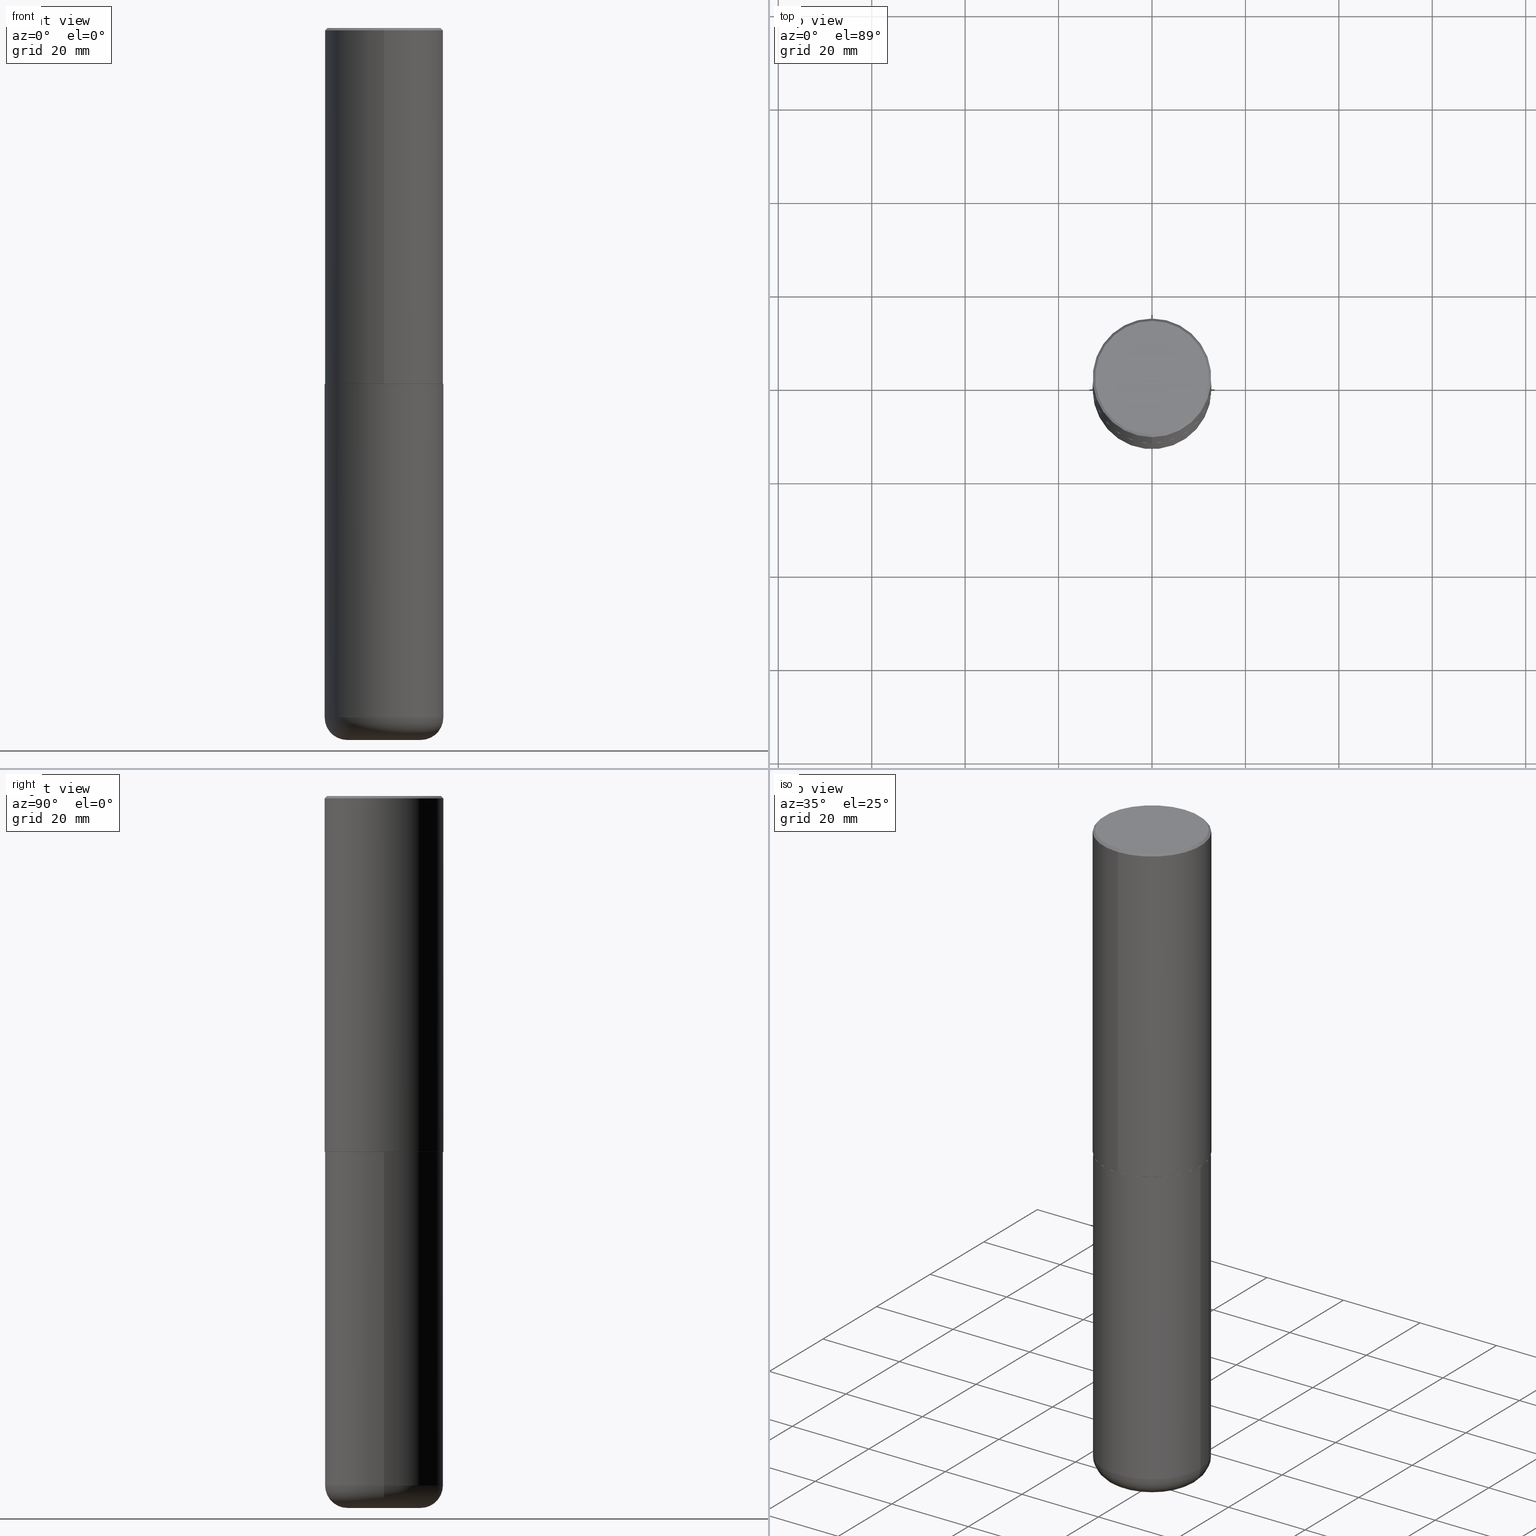
[diagram: canonical four-view strip — front | top / right | iso, engineering-drawing reading convention]
A machine part, canonical four-view strip (front | top / right | iso — engineering-drawing reading convention). The complete STEP part file that produces these views, byte-faithful:
ISO-10303-21;
HEADER;
FILE_DESCRIPTION (( 'STEP AP203' ),
    '1' );
FILE_NAME ('37741.STEP',
    '2024-03-02T10:04:36',
    ( '' ),
    ( '' ),
    'SwSTEP 2.0',
    'SolidWorks 2023',
    '' );
FILE_SCHEMA (( 'CONFIG_CONTROL_DESIGN' ));
ENDSEC;

DATA;
#1 = ORIENTED_EDGE ( 'NONE', *, *, #166, .T. ) ;
#2 = EDGE_LOOP ( 'NONE', ( #46, #260, #193, #71 ) ) ;
#3 = COORDINATED_UNIVERSAL_TIME_OFFSET ( 5, 0, .BEHIND. ) ;
#4 = CARTESIAN_POINT ( 'NONE',  ( 3.491481338843133355E-15, 0.4999999999999999445, -0.02000000000000185310 ) ) ;
#5 = DIRECTION ( 'NONE',  ( -2.444898033699712212E-29, 3.492298717528625990E-15, 1.000000000000000000 ) ) ;
#6 = DATE_AND_TIME ( #327, #199 ) ;
#7 = PRODUCT_RELATED_PRODUCT_CATEGORY ( 'detail', '', ( #351 ) ) ;
#8 = COORDINATED_UNIVERSAL_TIME_OFFSET ( 5, 0, .BEHIND. ) ;
#9 = LOCAL_TIME ( 5, 4, 36.00000000000000000, #360 ) ;
#10 = ORIENTED_EDGE ( 'NONE', *, *, #295, .F. ) ;
#11 = TOROIDAL_SURFACE ( 'NONE', #299, 0.3099999999999999978, 0.1899999999999999467 ) ;
#12 = CARTESIAN_POINT ( 'NONE',  ( 4.889796067399450837E-31, -6.984597435057287381E-17, -0.02000000000000010797 ) ) ;
#13 = AXIS2_PLACEMENT_3D ( 'NONE', #194, #334, #47 ) ;
#14 = AXIS2_PLACEMENT_3D ( 'NONE', #88, #143, #381 ) ;
#15 = ORIENTED_EDGE ( 'NONE', *, *, #78, .T. ) ;
#16 = CARTESIAN_POINT ( 'NONE',  ( 0.5000000000000000000, -1.396592535537257129E-14, -3.000000000000000444 ) ) ;
#17 = CARTESIAN_POINT ( 'NONE',  ( 7.334694101099137475E-29, -1.047689615258587837E-14, -3.000000000000000444 ) ) ;
#18 = CIRCLE ( 'NONE', #140, 0.5000000000000000000 ) ;
#19 = VERTEX_POINT ( 'NONE', #4 ) ;
#20 = AXIS2_PLACEMENT_3D ( 'NONE', #35, #22, #210 ) ;
#21 = CARTESIAN_POINT ( 'NONE',  ( -3.430248998885764992E-15, -0.5000000000000001110, -0.01999999999999835937 ) ) ;
#22 = DIRECTION ( 'NONE',  ( -2.445468806185136597E-29, 3.491481338843145583E-15, 1.000000000000000000 ) ) ;
#23 = ADVANCED_FACE ( 'NONE', ( #73 ), #338, .T. ) ;
#24 = PLANE ( 'NONE',  #141 ) ;
#25 = DIRECTION ( 'NONE',  ( -2.444898033699712212E-29, 3.492298717528625990E-15, 1.000000000000000000 ) ) ;
#26 = PRODUCT_DEFINITION ( 'UNKNOWN', '', #104, #207 ) ;
#27 = CARTESIAN_POINT ( 'NONE',  ( 0.000000000000000000, 0.000000000000000000, 0.000000000000000000 ) ) ;
#28 = CARTESIAN_POINT ( 'NONE',  ( -0.5000000000000000000, -1.182726161880355609E-14, -3.000000000000000444 ) ) ;
#29 = LINE ( 'NONE', #355, #42 ) ;
#30 = VERTEX_POINT ( 'NONE', #280 ) ;
#31 = ORGANIZATION ( 'UNSPECIFIED', 'UNSPECIFIED', '' ) ;
#32 = APPROVAL_ROLE ( '' ) ;
#33 = ORIENTED_EDGE ( 'NONE', *, *, #330, .F. ) ;
#34 = ORIENTED_EDGE ( 'NONE', *, *, #196, .T. ) ;
#35 = CARTESIAN_POINT ( 'NONE',  ( 1.467281283711081958E-28, -2.094888803305887271E-14, -6.000000000000000888 ) ) ;
#36 = PERSON_AND_ORGANIZATION ( #200, #31 ) ;
#37 = FACE_OUTER_BOUND ( 'NONE', #233, .T. ) ;
#38 = ADVANCED_FACE ( 'NONE', ( #40 ), #224, .T. ) ;
#39 = ORIENTED_EDGE ( 'NONE', *, *, #103, .T. ) ;
#40 = FACE_OUTER_BOUND ( 'NONE', #154, .T. ) ;
#41 = EDGE_CURVE ( 'NONE', #332, #51, #101, .T. ) ;
#42 = VECTOR ( 'NONE', #129, 39.37007874015748143 ) ;
#43 = DATE_TIME_ROLE ( 'classification_date' ) ;
#44 = APPROVAL_PERSON_ORGANIZATION ( #178, #80, #32 ) ;
#45 = DIRECTION ( 'NONE',  ( -2.444898033699712212E-29, 3.492298717528625990E-15, 1.000000000000000000 ) ) ;
#46 = ORIENTED_EDGE ( 'NONE', *, *, #196, .F. ) ;
#47 = DIRECTION ( 'NONE',  ( -6.982962677686265922E-15, -1.000000000000000000, 3.284787166730577015E-15 ) ) ;
#48 = CARTESIAN_POINT ( 'NONE',  ( 0.000000000000000000, 0.000000000000000000, 0.000000000000000000 ) ) ;
#49 = VECTOR ( 'NONE', #121, 39.37007874015748143 ) ;
#50 = AXIS2_PLACEMENT_3D ( 'NONE', #312, #58, #379 ) ;
#51 = VERTEX_POINT ( 'NONE', #300 ) ;
#52 = CARTESIAN_POINT ( 'NONE',  ( 0.000000000000000000, 0.000000000000000000, 0.000000000000000000 ) ) ;
#53 = DIRECTION ( 'NONE',  ( 1.000000000000000000, -6.982962677686266711E-15, 4.876176775795935793E-29 ) ) ;
#54 = AXIS2_PLACEMENT_3D ( 'NONE', #170, #269, #294 ) ;
#55 = LINE ( 'NONE', #306, #49 ) ;
#56 = ADVANCED_FACE ( 'NONE', ( #147 ), #191, .T. ) ;
#57 = CARTESIAN_POINT ( 'NONE',  ( 1.467281283711081958E-28, -2.094888803305887271E-14, -6.000000000000000888 ) ) ;
#58 = DIRECTION ( 'NONE',  ( -2.444898033699712212E-29, 3.492298717528625990E-15, 1.000000000000000000 ) ) ;
#59 = CARTESIAN_POINT ( 'NONE',  ( -3.491481338843133750E-15, -0.5000000000000001110, 1.746149358764313390E-15 ) ) ;
#60 = TOROIDAL_SURFACE ( 'NONE', #406, 0.3099999999999999978, 0.1899999999999999467 ) ;
#61 = CARTESIAN_POINT ( 'NONE',  ( -3.361644018908049661E-15, -0.4799999999999999267, 1.779140025945180744E-15 ) ) ;
#62 = ORIENTED_EDGE ( 'NONE', *, *, #132, .T. ) ;
#63 = EDGE_CURVE ( 'NONE', #111, #109, #55, .T. ) ;
#64 = DATE_AND_TIME ( #349, #270 ) ;
#65 = CARTESIAN_POINT ( 'NONE',  ( -3.430248998885764992E-15, -0.5000000000000001110, -0.01999999999999835937 ) ) ;
#66 = CARTESIAN_POINT ( 'NONE',  ( 4.889796067399450837E-31, -6.984597435057287381E-17, -0.02000000000000010797 ) ) ;
#67 = PERSON_AND_ORGANIZATION ( #200, #31 ) ;
#68 = CARTESIAN_POINT ( 'NONE',  ( 1.420817376393564695E-28, -2.028550657867867926E-14, -5.810000000000000497 ) ) ;
#69 = CIRCLE ( 'NONE', #266, 0.5000000000000000000 ) ;
#70 = PERSON_AND_ORGANIZATION_ROLE ( 'creator' ) ;
#71 = ORIENTED_EDGE ( 'NONE', *, *, #302, .F. ) ;
#72 = APPROVAL ( #182, 'UNSPECIFIED' ) ;
#73 = FACE_OUTER_BOUND ( 'NONE', #367, .T. ) ;
#74 = CALENDAR_DATE ( 2024, 2, 3 ) ;
#75 = ORIENTED_EDGE ( 'NONE', *, *, #166, .F. ) ;
#76 = CIRCLE ( 'NONE', #310, 0.5000000000000000000 ) ;
#77 = ORIENTED_EDGE ( 'NONE', *, *, #223, .T. ) ;
#78 = EDGE_CURVE ( 'NONE', #161, #197, #29, .T. ) ;
#79 = EDGE_LOOP ( 'NONE', ( #281, #267, #62, #284 ) ) ;
#80 = APPROVAL ( #246, 'UNSPECIFIED' ) ;
#81 = CC_DESIGN_APPROVAL ( #382, ( #104 ) ) ;
#82 = ORIENTED_EDGE ( 'NONE', *, *, #162, .T. ) ;
#83 = DIRECTION ( 'NONE',  ( -2.445468806185136877E-29, 3.491481338843145188E-15, 1.000000000000000000 ) ) ;
#84 = DIRECTION ( 'NONE',  ( 1.000000000000000000, -6.982962677686266711E-15, 0.000000000000000000 ) ) ;
#85 = AXIS2_PLACEMENT_3D ( 'NONE', #343, #145, #176 ) ;
#86 = AXIS2_PLACEMENT_3D ( 'NONE', #319, #25, #350 ) ;
#87 = LINE ( 'NONE', #21, #113 ) ;
#88 = CARTESIAN_POINT ( 'NONE',  ( 7.332249203065438921E-29, -1.047340385386834930E-14, -2.999000000000000554 ) ) ;
#89 = CARTESIAN_POINT ( 'NONE',  ( 1.420817376393564695E-28, -2.028550657867867926E-14, -5.810000000000000497 ) ) ;
#90 = EDGE_LOOP ( 'NONE', ( #390, #75, #226, #186 ) ) ;
#91 = LINE ( 'NONE', #345, #229 ) ;
#92 = AXIS2_PLACEMENT_3D ( 'NONE', #114, #410, #376 ) ;
#93 = CC_DESIGN_APPROVAL ( #80, ( #174 ) ) ;
#94 = DATE_AND_TIME ( #261, #412 ) ;
#95 = DIRECTION ( 'NONE',  ( 6.982962677686265922E-15, 1.000000000000000000, -3.491643216902136408E-15 ) ) ;
#96 = DIRECTION ( 'NONE',  ( 0.000000000000000000, 0.000000000000000000, 1.000000000000000000 ) ) ;
#97 = MECHANICAL_CONTEXT ( 'NONE', #118, 'mechanical' ) ;
#98 = UNCERTAINTY_MEASURE_WITH_UNIT (LENGTH_MEASURE( 1.000000000000000082E-05 ), #303, 'distance_accuracy_value', 'NONE');
#99 = ORIENTED_EDGE ( 'NONE', *, *, #298, .F. ) ;
#100 = FACE_OUTER_BOUND ( 'NONE', #135, .T. ) ;
#101 = CIRCLE ( 'NONE', #234, 0.1899999999999999467 ) ;
#102 = ORIENTED_EDGE ( 'NONE', *, *, #103, .F. ) ;
#103 = EDGE_CURVE ( 'NONE', #320, #30, #183, .T. ) ;
#104 = PRODUCT_DEFINITION_FORMATION_WITH_SPECIFIED_SOURCE ( 'ANY', '', #351, .NOT_KNOWN. ) ;
#105 = DIRECTION ( 'NONE',  ( 6.982962677686265922E-15, 1.000000000000000000, -3.491643216902136408E-15 ) ) ;
#106 = ADVANCED_FACE ( 'NONE', ( #369 ), #146, .T. ) ;
#107 = CLOSED_SHELL ( 'NONE', ( #165, #56, #23, #138, #363, #106, #326, #110 ) ) ;
#108 = APPROVAL_PERSON_ORGANIZATION ( #315, #72, #220 ) ;
#109 = VERTEX_POINT ( 'NONE', #325 ) ;
#110 = ADVANCED_FACE ( 'NONE', ( #365 ), #407, .F. ) ;
#111 = VERTEX_POINT ( 'NONE', #116 ) ;
#112 = VERTEX_POINT ( 'NONE', #272 ) ;
#113 = VECTOR ( 'NONE', #283, 39.37007874015748143 ) ;
#114 = CARTESIAN_POINT ( 'NONE',  ( 3.351822085289407153E-15, 0.4799999999999999267, -1.624885063648019971E-15 ) ) ;
#115 = CARTESIAN_POINT ( 'NONE',  ( 0.5000000000000000000, -3.491481338843133355E-15, 2.438088387897967896E-29 ) ) ;
#116 = CARTESIAN_POINT ( 'NONE',  ( 3.549160965121773789E-15, 0.4989999999999895630, -3.000000000000001776 ) ) ;
#117 = DIRECTION ( 'NONE',  ( -6.982962677686265922E-15, -1.000000000000000000, 3.284787166730577015E-15 ) ) ;
#118 = APPLICATION_CONTEXT ( 'configuration controlled 3d designs of mechanical parts and assemblies' ) ;
#119 = DIRECTION ( 'NONE',  ( 1.000000000000000000, -6.982962677686263555E-15, 0.000000000000000000 ) ) ;
#120 = CIRCLE ( 'NONE', #85, 0.1899999999999999467 ) ;
#121 = DIRECTION ( 'NONE',  ( 5.024295867789263036E-15, 0.7071067811867189912, 0.7071067811863760433 ) ) ;
#122 =( NAMED_UNIT ( * ) SI_UNIT ( $, .STERADIAN. ) SOLID_ANGLE_UNIT ( ) );
#123 = DATE_AND_TIME ( #285, #160 ) ;
#124 = AXIS2_PLACEMENT_3D ( 'NONE', #308, #175, #95 ) ;
#125 = ORIENTED_EDGE ( 'NONE', *, *, #372, .F. ) ;
#126 = PERSON_AND_ORGANIZATION_ROLE ( 'classification_officer' ) ;
#127 = DIRECTION ( 'NONE',  ( -6.982962677686265922E-15, -1.000000000000000000, 3.284787166730577015E-15 ) ) ;
#128 = SHAPE_DEFINITION_REPRESENTATION ( #263, #386 ) ;
#129 = DIRECTION ( 'NONE',  ( -4.937700262165728178E-15, -0.7071067811867141062, 0.7071067811863809283 ) ) ;
#130 = CIRCLE ( 'NONE', #50, 0.5000000000000002220 ) ;
#131 = DIRECTION ( 'NONE',  ( 1.000000000000000000, 0.000000000000000000, 0.000000000000000000 ) ) ;
#132 = EDGE_CURVE ( 'NONE', #197, #222, #321, .T. ) ;
#133 = DIRECTION ( 'NONE',  ( -2.444898033699712212E-29, 3.492298717528625990E-15, 1.000000000000000000 ) ) ;
#134 = ORIENTED_EDGE ( 'NONE', *, *, #330, .T. ) ;
#135 = EDGE_LOOP ( 'NONE', ( #195, #134, #316, #257 ) ) ;
#136 = APPLICATION_CONTEXT ( 'configuration controlled 3d designs of mechanical parts and assemblies' ) ;
#137 = CARTESIAN_POINT ( 'NONE',  ( 3.491481338843133355E-15, 0.4999999999999999445, -0.02000000000000185310 ) ) ;
#138 = ADVANCED_FACE ( 'NONE', ( #417 ), #264, .T. ) ;
#139 = EDGE_CURVE ( 'NONE', #51, #112, #309, .T. ) ;
#140 = AXIS2_PLACEMENT_3D ( 'NONE', #243, #215, #292 ) ;
#141 = AXIS2_PLACEMENT_3D ( 'NONE', #242, #173, #340 ) ;
#142 = CC_DESIGN_PERSON_AND_ORGANIZATION_ASSIGNMENT ( #36, #258, ( #104 ) ) ;
#143 = DIRECTION ( 'NONE',  ( -2.444898033699712212E-29, 3.492298717528625990E-15, 1.000000000000000000 ) ) ;
#144 = DIRECTION ( 'NONE',  ( -2.445468806185136597E-29, 3.491481338843145583E-15, 1.000000000000000000 ) ) ;
#145 = DIRECTION ( 'NONE',  ( -6.982962677686266711E-15, -1.000000000000000000, 3.491481338843145583E-15 ) ) ;
#146 = CONICAL_SURFACE ( 'NONE', #13, 0.4989999999999999991, 0.7853981633976873100 ) ;
#147 = FACE_OUTER_BOUND ( 'NONE', #331, .T. ) ;
#148 = APPROVAL_PERSON_ORGANIZATION ( #318, #382, #389 ) ;
#149 = DIRECTION ( 'NONE',  ( -2.445468806185136597E-29, 3.491481338843145583E-15, 1.000000000000000000 ) ) ;
#150 = LINE ( 'NONE', #115, #247 ) ;
#151 = DIRECTION ( 'NONE',  ( 1.000000000000000000, -6.982962677686270655E-15, 0.000000000000000000 ) ) ;
#152 = CARTESIAN_POINT ( 'NONE',  ( 3.552713678800501718E-15, 0.5000000000000001110, -1.746149358764313390E-15 ) ) ;
#153 = CARTESIAN_POINT ( 'NONE',  ( -3.491481338843061569E-15, -0.5000000000000107692, -2.998999999999998778 ) ) ;
#154 = EDGE_LOOP ( 'NONE', ( #241, #33 ) ) ;
#155 = EDGE_CURVE ( 'NONE', #222, #19, #18, .T. ) ;
#156 = PERSON_AND_ORGANIZATION_ROLE ( 'creator' ) ;
#157 = CC_DESIGN_APPROVAL ( #72, ( #26 ) ) ;
#158 = COORDINATED_UNIVERSAL_TIME_OFFSET ( 5, 0, .BEHIND. ) ;
#159 = EDGE_CURVE ( 'NONE', #112, #51, #76, .T. ) ;
#160 = LOCAL_TIME ( 5, 4, 36.00000000000000000, #187 ) ;
#161 = VERTEX_POINT ( 'NONE', #179 ) ;
#162 = EDGE_CURVE ( 'NONE', #180, #332, #329, .T. ) ;
#163 = PLANE ( 'NONE',  #54 ) ;
#164 = CONICAL_SURFACE ( 'NONE', #259, 0.4989999999999999991, 0.7853981633976873100 ) ;
#165 = ADVANCED_FACE ( 'NONE', ( #313 ), #164, .T. ) ;
#166 = EDGE_CURVE ( 'NONE', #30, #320, #339, .T. ) ;
#167 = ORIENTED_EDGE ( 'NONE', *, *, #317, .F. ) ;
#168 = ORIENTED_EDGE ( 'NONE', *, *, #344, .F. ) ;
#169 = AXIS2_PLACEMENT_3D ( 'NONE', #52, #278, #402 ) ;
#170 = CARTESIAN_POINT ( 'NONE',  ( 7.336406418555409790E-29, -1.047444401652943635E-14, -3.000000000000000444 ) ) ;
#171 = CARTESIAN_POINT ( 'NONE',  ( 0.000000000000000000, 0.000000000000000000, 0.000000000000000000 ) ) ;
#172 = CARTESIAN_POINT ( 'NONE',  ( 7.336406418555409790E-29, -1.047444401652943635E-14, -3.000000000000000444 ) ) ;
#173 = DIRECTION ( 'NONE',  ( -2.444898033699711371E-29, 3.492298717528626385E-15, 1.000000000000000000 ) ) ;
#174 = SECURITY_CLASSIFICATION ( '', '', #323 ) ;
#175 = DIRECTION ( 'NONE',  ( 2.444898033699712212E-29, -3.492298717528625990E-15, -1.000000000000000000 ) ) ;
#176 = DIRECTION ( 'NONE',  ( 1.000000000000000000, -6.982962677686263555E-15, 0.000000000000000000 ) ) ;
#177 = CARTESIAN_POINT ( 'NONE',  ( -2.514251026725007597E-45, 3.591362713352002573E-31, 1.028366415314403880E-16 ) ) ;
#178 = PERSON_AND_ORGANIZATION ( #200, #31 ) ;
#179 = CARTESIAN_POINT ( 'NONE',  ( -3.484498376165373188E-15, -0.4990000000000104352, -2.999999999999998668 ) ) ;
#180 = VERTEX_POINT ( 'NONE', #391 ) ;
#181 = DIRECTION ( 'NONE',  ( -6.982962677686265922E-15, -1.000000000000000000, 3.491643216902136408E-15 ) ) ;
#182 = APPROVAL_STATUS ( 'not_yet_approved' ) ;
#183 = CIRCLE ( 'NONE', #301, 0.4799999999999999267 ) ;
#184 = VECTOR ( 'NONE', #383, 39.37007874015748143 ) ;
#185 = APPROVAL_STATUS ( 'not_yet_approved' ) ;
#186 = ORIENTED_EDGE ( 'NONE', *, *, #293, .T. ) ;
#187 = COORDINATED_UNIVERSAL_TIME_OFFSET ( 5, 0, .BEHIND. ) ;
#188 = EDGE_LOOP ( 'NONE', ( #1, #39 ) ) ;
#189 = PERSON_AND_ORGANIZATION ( #200, #31 ) ;
#190 = ORIENTED_EDGE ( 'NONE', *, *, #41, .T. ) ;
#191 = CYLINDRICAL_SURFACE ( 'NONE', #286, 0.5000000000000001110 ) ;
#192 = CIRCLE ( 'NONE', #277, 0.3099999999999999978 ) ;
#193 = ORIENTED_EDGE ( 'NONE', *, *, #357, .T. ) ;
#194 = CARTESIAN_POINT ( 'NONE',  ( 7.334694101099137475E-29, -1.047689615258587837E-14, -3.000000000000000444 ) ) ;
#195 = ORIENTED_EDGE ( 'NONE', *, *, #41, .F. ) ;
#196 = EDGE_CURVE ( 'NONE', #51, #256, #91, .T. ) ;
#197 = VERTEX_POINT ( 'NONE', #153 ) ;
#198 = AXIS2_PLACEMENT_3D ( 'NONE', #68, #149, #413 ) ;
#199 = LOCAL_TIME ( 5, 4, 36.00000000000000000, #3 ) ;
#200 = PERSON ( 'UNSPECIFIED', 'UNSPECIFIED', 'UNSPECIFIED', ('UNSPECIFIED'), ('UNSPECIFIED'), ('UNSPECIFIED') ) ;
#201 = CC_DESIGN_PERSON_AND_ORGANIZATION_ASSIGNMENT ( #189, #126, ( #174 ) ) ;
#202 = ORIENTED_EDGE ( 'NONE', *, *, #371, .T. ) ;
#203 = FACE_OUTER_BOUND ( 'NONE', #291, .T. ) ;
#204 = VECTOR ( 'NONE', #248, 39.37007874015748143 ) ;
#205 = LINE ( 'NONE', #152, #184 ) ;
#206 = AXIS2_PLACEMENT_3D ( 'NONE', #171, #240, #341 ) ;
#207 = DESIGN_CONTEXT ( 'detailed design', #136, 'design' ) ;
#208 = CC_DESIGN_PERSON_AND_ORGANIZATION_ASSIGNMENT ( #67, #296, ( #351 ) ) ;
#209 = DIRECTION ( 'NONE',  ( -2.445468806185136597E-29, 3.491481338843145583E-15, 1.000000000000000000 ) ) ;
#210 = DIRECTION ( 'NONE',  ( 1.000000000000000000, -6.982962677686263555E-15, 0.000000000000000000 ) ) ;
#211 = DIRECTION ( 'NONE',  ( -1.000000000000000000, 6.982962677686265922E-15, -4.876176775795935793E-29 ) ) ;
#212 = DIRECTION ( 'NONE',  ( -2.445468806185136597E-29, 3.491481338843145583E-15, 1.000000000000000000 ) ) ;
#213 = DIRECTION ( 'NONE',  ( 1.000000000000000000, -6.982962677686264344E-15, 4.883557194083112340E-29 ) ) ;
#214 = AXIS2_PLACEMENT_3D ( 'NONE', #177, #393, #251 ) ;
#215 = DIRECTION ( 'NONE',  ( -2.444898033699712212E-29, 3.492298717528625990E-15, 1.000000000000000000 ) ) ;
#216 = APPROVAL_DATE_TIME ( #123, #72 ) ;
#217 = ADVANCED_FACE ( 'NONE', ( #100 ), #11, .T. ) ;
#218 = APPLICATION_PROTOCOL_DEFINITION ( 'international standard', 'config_control_design', 1994, #118 ) ;
#219 = DIRECTION ( 'NONE',  ( -2.445468806185136877E-29, 3.491481338843145188E-15, 1.000000000000000000 ) ) ;
#220 = APPROVAL_ROLE ( '' ) ;
#221 =( GEOMETRIC_REPRESENTATION_CONTEXT ( 3 ) GLOBAL_UNCERTAINTY_ASSIGNED_CONTEXT ( ( #98 ) ) GLOBAL_UNIT_ASSIGNED_CONTEXT ( ( #303, #304, #122 ) ) REPRESENTATION_CONTEXT ( 'NONE', 'WORKASPACE' ) );
#222 = VERTEX_POINT ( 'NONE', #65 ) ;
#223 = EDGE_CURVE ( 'NONE', #111, #161, #395, .T. ) ;
#224 = PLANE ( 'NONE',  #346 ) ;
#225 = PERSON_AND_ORGANIZATION ( #200, #31 ) ;
#226 = ORIENTED_EDGE ( 'NONE', *, *, #228, .T. ) ;
#227 = ORIENTED_EDGE ( 'NONE', *, *, #155, .F. ) ;
#228 = EDGE_CURVE ( 'NONE', #30, #19, #236, .T. ) ;
#229 = VECTOR ( 'NONE', #219, 39.37007874015748143 ) ;
#230 = CARTESIAN_POINT ( 'NONE',  ( -2.514251026725007597E-45, 3.591362713352002573E-31, 1.028366415314403880E-16 ) ) ;
#231 = DIRECTION ( 'NONE',  ( -6.982962677686265922E-15, -1.000000000000000000, 3.492298717528625990E-15 ) ) ;
#232 = DIRECTION ( 'NONE',  ( 2.444898033699712212E-29, -3.492298717528625990E-15, -1.000000000000000000 ) ) ;
#233 = EDGE_LOOP ( 'NONE', ( #82, #190, #314, #168 ) ) ;
#234 = AXIS2_PLACEMENT_3D ( 'NONE', #354, #401, #405 ) ;
#235 = VECTOR ( 'NONE', #362, 39.37007874015748143 ) ;
#236 = LINE ( 'NONE', #137, #235 ) ;
#237 = FACE_OUTER_BOUND ( 'NONE', #289, .T. ) ;
#238 = FACE_OUTER_BOUND ( 'NONE', #79, .T. ) ;
#239 = ADVANCED_FACE ( 'NONE', ( #328 ), #163, .F. ) ;
#240 = DIRECTION ( 'NONE',  ( -2.444898033699712212E-29, 3.492298717528625990E-15, 1.000000000000000000 ) ) ;
#241 = ORIENTED_EDGE ( 'NONE', *, *, #162, .F. ) ;
#242 = CARTESIAN_POINT ( 'NONE',  ( 7.334694101099137475E-29, -1.047689615258587837E-14, -3.000000000000000444 ) ) ;
#243 = CARTESIAN_POINT ( 'NONE',  ( 4.889796067399450837E-31, -6.984597435057287381E-17, -0.02000000000000010797 ) ) ;
#244 = DIRECTION ( 'NONE',  ( -2.444898033699712212E-29, 3.492298717528625990E-15, 1.000000000000000000 ) ) ;
#245 = MANIFOLD_SOLID_BREP ( 'Body-Move/Copy2[2]', #107 ) ;
#246 = APPROVAL_STATUS ( 'not_yet_approved' ) ;
#247 = VECTOR ( 'NONE', #83, 39.37007874015748143 ) ;
#248 = DIRECTION ( 'NONE',  ( -2.444898033699711931E-29, 3.492298717528626385E-15, 1.000000000000000000 ) ) ;
#249 = DIRECTION ( 'NONE',  ( -2.445468806185136597E-29, 3.491481338843145583E-15, 1.000000000000000000 ) ) ;
#250 = DATE_AND_TIME ( #74, #9 ) ;
#251 = DIRECTION ( 'NONE',  ( -6.982962677686265922E-15, -1.000000000000000000, 3.492298717528625990E-15 ) ) ;
#252 = APPROVAL_DATE_TIME ( #6, #382 ) ;
#253 = FACE_OUTER_BOUND ( 'NONE', #2, .T. ) ;
#254 = CARTESIAN_POINT ( 'NONE',  ( 7.334694101099137475E-29, -1.047689615258587837E-14, -3.000000000000000444 ) ) ;
#255 = ORIENTED_EDGE ( 'NONE', *, *, #132, .F. ) ;
#256 = VERTEX_POINT ( 'NONE', #28 ) ;
#257 = ORIENTED_EDGE ( 'NONE', *, *, #139, .F. ) ;
#258 = PERSON_AND_ORGANIZATION_ROLE ( 'design_supplier' ) ;
#259 = AXIS2_PLACEMENT_3D ( 'NONE', #254, #244, #127 ) ;
#260 = ORIENTED_EDGE ( 'NONE', *, *, #139, .T. ) ;
#261 = CALENDAR_DATE ( 2024, 2, 3 ) ;
#262 = CARTESIAN_POINT ( 'NONE',  ( 1.467281283711081958E-28, -2.094888803305887271E-14, -6.000000000000000888 ) ) ;
#263 = PRODUCT_DEFINITION_SHAPE ( 'NONE', 'NONE',  #26 ) ;
#264 = CONICAL_SURFACE ( 'NONE', #124, 0.5000000000000000000, 0.7853981633974446153 ) ;
#265 = AXIS2_PLACEMENT_3D ( 'NONE', #172, #212, #271 ) ;
#266 = AXIS2_PLACEMENT_3D ( 'NONE', #66, #359, #181 ) ;
#267 = ORIENTED_EDGE ( 'NONE', *, *, #298, .T. ) ;
#268 = ADVANCED_FACE ( 'NONE', ( #37 ), #60, .T. ) ;
#269 = DIRECTION ( 'NONE',  ( 2.438088387897960049E-29, -3.491481338843145188E-15, -1.000000000000000000 ) ) ;
#270 = LOCAL_TIME ( 5, 4, 36.00000000000000000, #158 ) ;
#271 = DIRECTION ( 'NONE',  ( 1.000000000000000000, -6.982962677686266711E-15, 0.000000000000000000 ) ) ;
#272 = CARTESIAN_POINT ( 'NONE',  ( 0.5000000000000000000, -2.377698791752181577E-14, -5.810000000000000497 ) ) ;
#273 = ORIENTED_EDGE ( 'NONE', *, *, #380, .T. ) ;
#274 = ADVANCED_FACE ( 'NONE', ( #253 ), #414, .T. ) ;
#275 = DIRECTION ( 'NONE',  ( 1.000000000000000000, -6.982962677686264344E-15, 4.883557194083112340E-29 ) ) ;
#276 = CLOSED_SHELL ( 'NONE', ( #408, #268, #239, #274, #217, #38 ) ) ;
#277 = AXIS2_PLACEMENT_3D ( 'NONE', #57, #209, #119 ) ;
#278 = DIRECTION ( 'NONE',  ( -2.445468806185136597E-29, 3.491481338843145583E-15, 1.000000000000000000 ) ) ;
#279 = LENGTH_MEASURE_WITH_UNIT ( LENGTH_MEASURE( 0.02539999999999999897 ), #311 );
#280 = CARTESIAN_POINT ( 'NONE',  ( 3.421651712066270057E-15, 0.4799999999999999267, -1.573466742882299844E-15 ) ) ;
#281 = ORIENTED_EDGE ( 'NONE', *, *, #371, .F. ) ;
#282 = CC_DESIGN_PERSON_AND_ORGANIZATION_ASSIGNMENT ( #385, #70, ( #26 ) ) ;
#283 = DIRECTION ( 'NONE',  ( -4.851104656540946131E-15, -0.7071067811865473507, -0.7071067811865476838 ) ) ;
#284 = ORIENTED_EDGE ( 'NONE', *, *, #293, .F. ) ;
#285 = CALENDAR_DATE ( 2024, 2, 3 ) ;
#286 = AXIS2_PLACEMENT_3D ( 'NONE', #48, #5, #324 ) ;
#287 = AXIS2_PLACEMENT_3D ( 'NONE', #337, #144, #53 ) ;
#288 = DIRECTION ( 'NONE',  ( -2.445468806185136597E-29, 3.491481338843145583E-15, 1.000000000000000000 ) ) ;
#289 = EDGE_LOOP ( 'NONE', ( #10, #364 ) ) ;
#290 = APPROVAL_DATE_TIME ( #64, #80 ) ;
#291 = EDGE_LOOP ( 'NONE', ( #361, #34, #167, #336 ) ) ;
#292 = DIRECTION ( 'NONE',  ( -6.982962677686265922E-15, -1.000000000000000000, 3.491643216902136408E-15 ) ) ;
#293 = EDGE_CURVE ( 'NONE', #19, #222, #69, .T. ) ;
#294 = DIRECTION ( 'NONE',  ( -1.000000000000000000, 6.982962677686265922E-15, -4.876176775795935793E-29 ) ) ;
#295 = EDGE_CURVE ( 'NONE', #161, #111, #384, .T. ) ;
#296 = PERSON_AND_ORGANIZATION_ROLE ( 'design_owner' ) ;
#297 = AXIS2_PLACEMENT_3D ( 'NONE', #17, #133, #117 ) ;
#298 = EDGE_CURVE ( 'NONE', #109, #197, #366, .T. ) ;
#299 = AXIS2_PLACEMENT_3D ( 'NONE', #392, #249, #275 ) ;
#300 = CARTESIAN_POINT ( 'NONE',  ( -0.5000000000000000000, -1.673279289987817518E-14, -5.810000000000000497 ) ) ;
#301 = AXIS2_PLACEMENT_3D ( 'NONE', #230, #45, #231 ) ;
#302 = EDGE_CURVE ( 'NONE', #256, #342, #377, .T. ) ;
#303 =( CONVERSION_BASED_UNIT ( 'INCH', #279 ) LENGTH_UNIT ( ) NAMED_UNIT ( #370 ) );
#304 =( NAMED_UNIT ( * ) PLANE_ANGLE_UNIT ( ) SI_UNIT ( $, .RADIAN. ) );
#305 = ORIENTED_EDGE ( 'NONE', *, *, #302, .T. ) ;
#306 = CARTESIAN_POINT ( 'NONE',  ( 3.545608251442972496E-15, 0.4989999999999895630, -3.000000000000001776 ) ) ;
#307 = DIRECTION ( 'NONE',  ( -2.445468806185136597E-29, 3.491481338843145583E-15, 1.000000000000000000 ) ) ;
#308 = CARTESIAN_POINT ( 'NONE',  ( 4.889796067399450837E-31, -6.984597435057287381E-17, -0.02000000000000010797 ) ) ;
#309 = CIRCLE ( 'NONE', #198, 0.5000000000000000000 ) ;
#310 = AXIS2_PLACEMENT_3D ( 'NONE', #89, #288, #151 ) ;
#311 =( LENGTH_UNIT ( ) NAMED_UNIT ( * ) SI_UNIT ( $, .METRE. ) );
#312 = CARTESIAN_POINT ( 'NONE',  ( 7.332249203065438921E-29, -1.047340385386834930E-14, -2.999000000000000554 ) ) ;
#313 = FACE_OUTER_BOUND ( 'NONE', #409, .T. ) ;
#314 = ORIENTED_EDGE ( 'NONE', *, *, #159, .F. ) ;
#315 = PERSON_AND_ORGANIZATION ( #200, #31 ) ;
#316 = ORIENTED_EDGE ( 'NONE', *, *, #344, .T. ) ;
#317 = EDGE_CURVE ( 'NONE', #342, #256, #347, .T. ) ;
#318 = PERSON_AND_ORGANIZATION ( #200, #31 ) ;
#319 = CARTESIAN_POINT ( 'NONE',  ( 7.334694101099137475E-29, -1.047689615258587837E-14, -3.000000000000000444 ) ) ;
#320 = VERTEX_POINT ( 'NONE', #61 ) ;
#321 = LINE ( 'NONE', #59, #204 ) ;
#322 = DIRECTION ( 'NONE',  ( -2.445468806185136597E-29, 3.491481338843145583E-15, 1.000000000000000000 ) ) ;
#323 = SECURITY_CLASSIFICATION_LEVEL ( 'unclassified' ) ;
#324 = DIRECTION ( 'NONE',  ( -6.982962677686265922E-15, -1.000000000000000000, 3.492298717528625990E-15 ) ) ;
#325 = CARTESIAN_POINT ( 'NONE',  ( 3.552713678800539584E-15, 0.4999999999999898970, -2.999000000000001886 ) ) ;
#326 = ADVANCED_FACE ( 'NONE', ( #237 ), #24, .F. ) ;
#327 = CALENDAR_DATE ( 2024, 2, 3 ) ;
#328 = FACE_OUTER_BOUND ( 'NONE', #387, .T. ) ;
#329 = CIRCLE ( 'NONE', #20, 0.3099999999999999978 ) ;
#330 = EDGE_CURVE ( 'NONE', #332, #180, #192, .T. ) ;
#331 = EDGE_LOOP ( 'NONE', ( #388, #202, #227, #255 ) ) ;
#332 = VERTEX_POINT ( 'NONE', #374 ) ;
#333 = ORIENTED_EDGE ( 'NONE', *, *, #63, .F. ) ;
#334 = DIRECTION ( 'NONE',  ( -2.444898033699712212E-29, 3.492298717528625990E-15, 1.000000000000000000 ) ) ;
#335 = CC_DESIGN_DATE_AND_TIME_ASSIGNMENT ( #250, #43, ( #174 ) ) ;
#336 = ORIENTED_EDGE ( 'NONE', *, *, #357, .F. ) ;
#337 = CARTESIAN_POINT ( 'NONE',  ( 0.000000000000000000, 0.000000000000000000, 0.000000000000000000 ) ) ;
#338 = CONICAL_SURFACE ( 'NONE', #394, 0.5000000000000000000, 0.7853981633974446153 ) ;
#339 = CIRCLE ( 'NONE', #214, 0.4799999999999999267 ) ;
#340 = DIRECTION ( 'NONE',  ( -6.982962677686265922E-15, -1.000000000000000000, 3.492298717528626385E-15 ) ) ;
#341 = DIRECTION ( 'NONE',  ( -6.982962677686265922E-15, -1.000000000000000000, 3.492298717528625990E-15 ) ) ;
#342 = VERTEX_POINT ( 'NONE', #16 ) ;
#343 = CARTESIAN_POINT ( 'NONE',  ( 0.3099999999999999978, -2.245022500876142257E-14, -5.810000000000000497 ) ) ;
#344 = EDGE_CURVE ( 'NONE', #180, #112, #120, .T. ) ;
#345 = CARTESIAN_POINT ( 'NONE',  ( -0.5000000000000000000, 3.552713678800500929E-15, -2.459467545127452891E-29 ) ) ;
#346 = AXIS2_PLACEMENT_3D ( 'NONE', #262, #418, #211 ) ;
#347 = CIRCLE ( 'NONE', #400, 0.5000000000000000000 ) ;
#348 = CARTESIAN_POINT ( 'NONE',  ( 7.336406418555409790E-29, -1.047444401652943635E-14, -3.000000000000000444 ) ) ;
#349 = CALENDAR_DATE ( 2024, 2, 3 ) ;
#350 = DIRECTION ( 'NONE',  ( -6.982962677686265922E-15, -1.000000000000000000, 3.284787166730577015E-15 ) ) ;
#351 = PRODUCT ( '37741', '37741', '', ( #97 ) ) ;
#352 = APPLICATION_PROTOCOL_DEFINITION ( 'international standard', 'config_control_design', 1994, #136 ) ;
#353 = ORIENTED_EDGE ( 'NONE', *, *, #78, .F. ) ;
#354 = CARTESIAN_POINT ( 'NONE',  ( -0.3099999999999999978, -1.808282409782236831E-14, -5.810000000000000497 ) ) ;
#355 = CARTESIAN_POINT ( 'NONE',  ( -3.484498376165373188E-15, -0.4990000000000104352, -2.999999999999998668 ) ) ;
#356 = CARTESIAN_POINT ( 'NONE',  ( 1.420817376393564695E-28, -2.028550657867867926E-14, -5.810000000000000497 ) ) ;
#357 = EDGE_CURVE ( 'NONE', #112, #342, #150, .T. ) ;
#358 = AXIS2_PLACEMENT_3D ( 'NONE', #27, #96, #131 ) ;
#359 = DIRECTION ( 'NONE',  ( -2.444898033699712212E-29, 3.492298717528625990E-15, 1.000000000000000000 ) ) ;
#360 = COORDINATED_UNIVERSAL_TIME_OFFSET ( 5, 0, .BEHIND. ) ;
#361 = ORIENTED_EDGE ( 'NONE', *, *, #159, .T. ) ;
#362 = DIRECTION ( 'NONE',  ( 4.937700262164529898E-15, 0.7071067811865424657, -0.7071067811865525687 ) ) ;
#363 = ADVANCED_FACE ( 'NONE', ( #238 ), #411, .T. ) ;
#364 = ORIENTED_EDGE ( 'NONE', *, *, #223, .F. ) ;
#365 = FACE_OUTER_BOUND ( 'NONE', #188, .T. ) ;
#366 = CIRCLE ( 'NONE', #14, 0.5000000000000002220 ) ;
#367 = EDGE_LOOP ( 'NONE', ( #102, #273, #368, #397 ) ) ;
#368 = ORIENTED_EDGE ( 'NONE', *, *, #155, .T. ) ;
#369 = FACE_OUTER_BOUND ( 'NONE', #398, .T. ) ;
#370 = DIMENSIONAL_EXPONENTS ( 1.000000000000000000, 0.000000000000000000, 0.000000000000000000, 0.000000000000000000, 0.000000000000000000, 0.000000000000000000, 0.000000000000000000 ) ;
#371 = EDGE_CURVE ( 'NONE', #109, #19, #205, .T. ) ;
#372 = EDGE_CURVE ( 'NONE', #197, #109, #130, .T. ) ;
#373 = ORIENTED_EDGE ( 'NONE', *, *, #317, .T. ) ;
#374 = CARTESIAN_POINT ( 'NONE',  ( -0.3099999999999999978, -1.773949922604037162E-14, -6.000000000000000888 ) ) ;
#375 = CC_DESIGN_DATE_AND_TIME_ASSIGNMENT ( #94, #396, ( #26 ) ) ;
#376 = DIRECTION ( 'NONE',  ( 6.982962677686265922E-15, 1.000000000000000000, -3.492298717528626385E-15 ) ) ;
#377 = CIRCLE ( 'NONE', #265, 0.5000000000000000000 ) ;
#378 = CC_DESIGN_SECURITY_CLASSIFICATION ( #174, ( #104 ) ) ;
#379 = DIRECTION ( 'NONE',  ( -6.982962677686266711E-15, -1.000000000000000000, 3.278217592397114284E-15 ) ) ;
#380 = EDGE_CURVE ( 'NONE', #320, #222, #87, .T. ) ;
#381 = DIRECTION ( 'NONE',  ( -6.982962677686266711E-15, -1.000000000000000000, 3.278217592397114284E-15 ) ) ;
#382 = APPROVAL ( #185, 'UNSPECIFIED' ) ;
#383 = DIRECTION ( 'NONE',  ( -2.444898033699711931E-29, 3.492298717528626385E-15, 1.000000000000000000 ) ) ;
#384 = CIRCLE ( 'NONE', #297, 0.4989999999999999991 ) ;
#385 = PERSON_AND_ORGANIZATION ( #200, #31 ) ;
#386 = ADVANCED_BREP_SHAPE_REPRESENTATION ( '37741', ( #399, #245, #358 ), #221 ) ;
#387 = EDGE_LOOP ( 'NONE', ( #373, #305 ) ) ;
#388 = ORIENTED_EDGE ( 'NONE', *, *, #372, .T. ) ;
#389 = APPROVAL_ROLE ( '' ) ;
#390 = ORIENTED_EDGE ( 'NONE', *, *, #380, .F. ) ;
#391 = CARTESIAN_POINT ( 'NONE',  ( 0.3099999999999999978, -2.311360646314161602E-14, -6.000000000000000888 ) ) ;
#392 = CARTESIAN_POINT ( 'NONE',  ( 1.420817376393564695E-28, -2.028550657867867926E-14, -5.810000000000000497 ) ) ;
#393 = DIRECTION ( 'NONE',  ( -2.444898033699712212E-29, 3.492298717528625990E-15, 1.000000000000000000 ) ) ;
#394 = AXIS2_PLACEMENT_3D ( 'NONE', #12, #232, #105 ) ;
#395 = CIRCLE ( 'NONE', #86, 0.4989999999999999991 ) ;
#396 = DATE_TIME_ROLE ( 'creation_date' ) ;
#397 = ORIENTED_EDGE ( 'NONE', *, *, #228, .F. ) ;
#398 = EDGE_LOOP ( 'NONE', ( #333, #77, #15, #99 ) ) ;
#399 = MANIFOLD_SOLID_BREP ( 'Body-Move/Copy2[1]', #276 ) ;
#400 = AXIS2_PLACEMENT_3D ( 'NONE', #348, #307, #84 ) ;
#401 = DIRECTION ( 'NONE',  ( 7.105427357601001859E-15, 1.000000000000000000, -3.491481338843145583E-15 ) ) ;
#402 = DIRECTION ( 'NONE',  ( 1.000000000000000000, -6.982962677686266711E-15, 4.876176775795935793E-29 ) ) ;
#403 = ORIENTED_EDGE ( 'NONE', *, *, #295, .T. ) ;
#404 = ORIENTED_EDGE ( 'NONE', *, *, #63, .T. ) ;
#405 = DIRECTION ( 'NONE',  ( -1.000000000000000000, 7.105427357600999492E-15, 0.000000000000000000 ) ) ;
#406 = AXIS2_PLACEMENT_3D ( 'NONE', #356, #322, #213 ) ;
#407 = PLANE ( 'NONE',  #92 ) ;
#408 = ADVANCED_FACE ( 'NONE', ( #203 ), #416, .T. ) ;
#409 = EDGE_LOOP ( 'NONE', ( #403, #404, #125, #353 ) ) ;
#410 = DIRECTION ( 'NONE',  ( 2.444898033699711371E-29, -3.492298717528626385E-15, -1.000000000000000000 ) ) ;
#411 = CYLINDRICAL_SURFACE ( 'NONE', #206, 0.5000000000000001110 ) ;
#412 = LOCAL_TIME ( 5, 4, 36.00000000000000000, #8 ) ;
#413 = DIRECTION ( 'NONE',  ( 1.000000000000000000, -6.982962677686270655E-15, 0.000000000000000000 ) ) ;
#414 = CYLINDRICAL_SURFACE ( 'NONE', #169, 0.5000000000000000000 ) ;
#415 = CC_DESIGN_PERSON_AND_ORGANIZATION_ASSIGNMENT ( #225, #156, ( #104 ) ) ;
#416 = CYLINDRICAL_SURFACE ( 'NONE', #287, 0.5000000000000000000 ) ;
#417 = FACE_OUTER_BOUND ( 'NONE', #90, .T. ) ;
#418 = DIRECTION ( 'NONE',  ( 2.438088387897960049E-29, -3.491481338843145188E-15, -1.000000000000000000 ) ) ;
ENDSEC;
END-ISO-10303-21;
